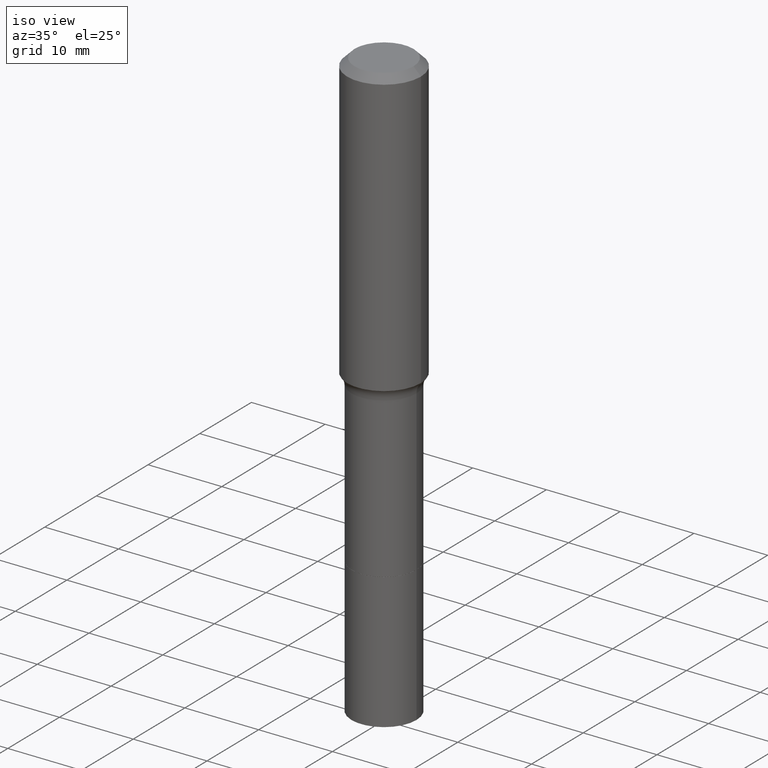
[diagram: clean part render]
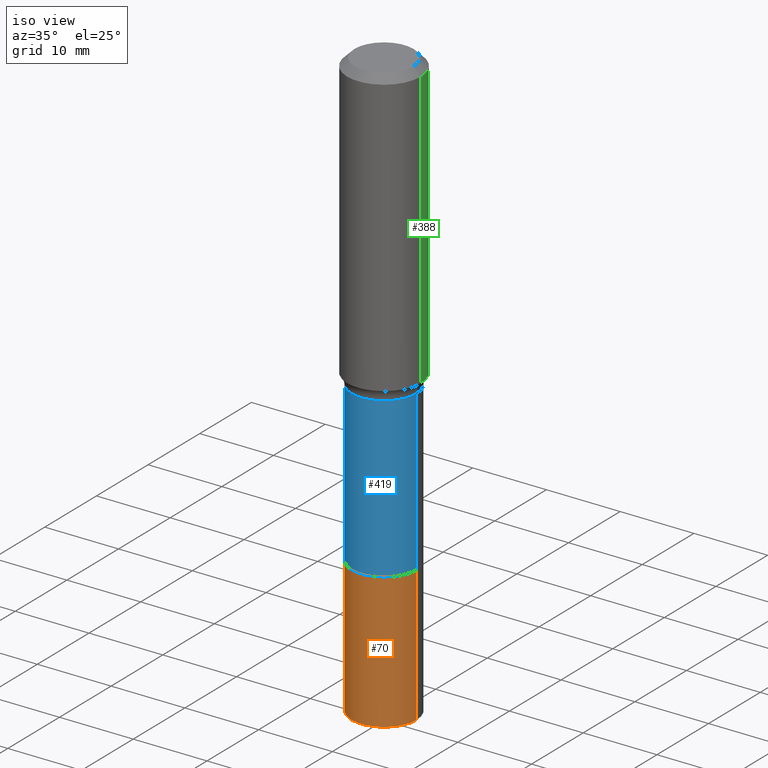
[diagram: same view with three faces highlighted in distinct colors, each labeled with its STEP entity id]
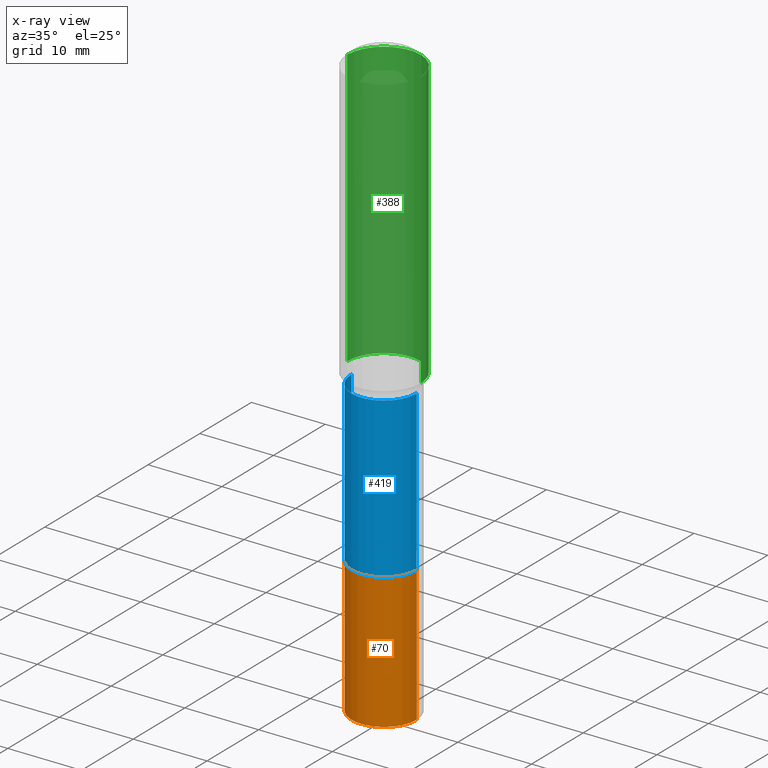
[diagram: x-ray of the same camera — body ghosted, the three highlighted faces saturated]
A machine part, iso view with three faces highlighted in distinct colors.
The next image is the same camera in x-ray (body ghosted, the three faces saturated) — at least one of them is partly hidden behind the body in this view.
Their STEP definitions:

[orange] entity #70 — the highlighted cylindrical surface (partial cylindrical patch) has radius 4.4006 mm, axis along (-0, 0, 1).
#6 = VERTEX_POINT ( 'NONE', #429 ) ;
#10 = VERTEX_POINT ( 'NONE', #106 ) ;
#34 = CIRCLE ( 'NONE', #465, 0.1732500000000001816 ) ;
#55 = EDGE_CURVE ( 'NONE', #6, #10, #427, .T. ) ;
#70 = ADVANCED_FACE ( 'NONE', ( #145 ), #315, .T. ) ;
#89 = ORIENTED_EDGE ( 'NONE', *, *, #313, .T. ) ;
#96 = DIRECTION ( 'NONE',  ( -2.445468806185136597E-29, 3.491481338843145583E-15, 1.000000000000000000 ) ) ;
#100 = CARTESIAN_POINT ( 'NONE',  ( -0.1732500000000001816, -8.501838090454777193E-15, -3.149600000000000399 ) ) ;
#102 = CARTESIAN_POINT ( 'NONE',  ( -0.1732499999999999873, -8.501838090454778770E-15, -2.425600000000000200 ) ) ;
#106 = CARTESIAN_POINT ( 'NONE',  ( 0.1732499999999999873, -9.678735419407081106E-15, -2.425600000000000200 ) ) ;
#109 = CARTESIAN_POINT ( 'NONE',  ( 7.702248551960706711E-29, -1.099676962482037231E-14, -3.149600000000000399 ) ) ;
#115 = ORIENTED_EDGE ( 'NONE', *, *, #55, .T. ) ;
#127 = LINE ( 'NONE', #454, #235 ) ;
#145 = FACE_OUTER_BOUND ( 'NONE', #324, .T. ) ;
#161 = ORIENTED_EDGE ( 'NONE', *, *, #330, .F. ) ;
#181 = CARTESIAN_POINT ( 'NONE',  ( 5.931729136282667609E-29, -8.468937135497934168E-15, -2.425600000000000200 ) ) ;
#192 = DIRECTION ( 'NONE',  ( -2.445468806185136877E-29, 3.491481338843145188E-15, 1.000000000000000000 ) ) ;
#225 = DIRECTION ( 'NONE',  ( -2.445468806185136877E-29, 3.491481338843145188E-15, 1.000000000000000000 ) ) ;
#228 = DIRECTION ( 'NONE',  ( -2.445468806185136597E-29, 3.491481338843145583E-15, 1.000000000000000000 ) ) ;
#233 = AXIS2_PLACEMENT_3D ( 'NONE', #181, #96, #387 ) ;
#235 = VECTOR ( 'NONE', #225, 39.37007874015748143 ) ;
#251 = VERTEX_POINT ( 'NONE', #102 ) ;
#267 = EDGE_CURVE ( 'NONE', #251, #10, #275, .T. ) ;
#271 = AXIS2_PLACEMENT_3D ( 'NONE', #511, #228, #467 ) ;
#275 = CIRCLE ( 'NONE', #271, 0.1732499999999999873 ) ;
#280 = DIRECTION ( 'NONE',  ( -2.445468806185136597E-29, 3.491481338843145583E-15, 1.000000000000000000 ) ) ;
#313 = EDGE_CURVE ( 'NONE', #435, #6, #34, .T. ) ;
#315 = CYLINDRICAL_SURFACE ( 'NONE', #233, 0.1732500000000000984 ) ;
#324 = EDGE_LOOP ( 'NONE', ( #161, #89, #115, #398 ) ) ;
#330 = EDGE_CURVE ( 'NONE', #435, #251, #127, .T. ) ;
#352 = CARTESIAN_POINT ( 'NONE',  ( 0.1732500000000000984, -9.678735419407081106E-15, -2.425600000000000200 ) ) ;
#357 = VECTOR ( 'NONE', #192, 39.37007874015748143 ) ;
#387 = DIRECTION ( 'NONE',  ( 1.000000000000000000, -6.982962677686265133E-15, 0.000000000000000000 ) ) ;
#398 = ORIENTED_EDGE ( 'NONE', *, *, #267, .F. ) ;
#427 = LINE ( 'NONE', #352, #357 ) ;
#429 = CARTESIAN_POINT ( 'NONE',  ( 0.1732500000000001816, -1.220656790872951925E-14, -3.149600000000000399 ) ) ;
#435 = VERTEX_POINT ( 'NONE', #100 ) ;
#454 = CARTESIAN_POINT ( 'NONE',  ( -0.1732500000000000984, -7.237921845793559699E-15, -2.425600000000000200 ) ) ;
#465 = AXIS2_PLACEMENT_3D ( 'NONE', #109, #280, #491 ) ;
#467 = DIRECTION ( 'NONE',  ( 1.000000000000000000, -6.982962677686269866E-15, 0.000000000000000000 ) ) ;
#491 = DIRECTION ( 'NONE',  ( 1.000000000000000000, -6.982962677686267499E-15, 0.000000000000000000 ) ) ;
#511 = CARTESIAN_POINT ( 'NONE',  ( 5.931729136282667609E-29, -8.468937135497934168E-15, -2.425600000000000200 ) ) ;

[blue] entity #419 — the highlighted cylindrical surface (partial cylindrical patch) has radius 4.4005 mm, axis along (-0, 0, 1).
#1 = VERTEX_POINT ( 'NONE', #286 ) ;
#17 = FACE_OUTER_BOUND ( 'NONE', #516, .T. ) ;
#37 = VERTEX_POINT ( 'NONE', #187 ) ;
#39 = CARTESIAN_POINT ( 'NONE',  ( 3.850635182219116347E-29, -5.497686516142417553E-15, -1.574600000000000222 ) ) ;
#61 = DIRECTION ( 'NONE',  ( -2.445468806185136877E-29, 3.491481338843145188E-15, 1.000000000000000000 ) ) ;
#77 = EDGE_CURVE ( 'NONE', #1, #489, #447, .T. ) ;
#78 = ORIENTED_EDGE ( 'NONE', *, *, #245, .F. ) ;
#82 = VERTEX_POINT ( 'NONE', #306 ) ;
#84 = VECTOR ( 'NONE', #269, 39.37007874015748143 ) ;
#108 = CARTESIAN_POINT ( 'NONE',  ( -0.1732499999999999318, 1.231015289704373088E-15, -8.522055043866620619E-30 ) ) ;
#134 = LINE ( 'NONE', #509, #160 ) ;
#135 = CARTESIAN_POINT ( 'NONE',  ( 5.930506401879575929E-29, -8.467191394828513453E-15, -2.425100000000000477 ) ) ;
#156 = CARTESIAN_POINT ( 'NONE',  ( 0.1732499999999999873, -9.676989678737658813E-15, -2.425100000000000477 ) ) ;
#160 = VECTOR ( 'NONE', #61, 39.37007874015748143 ) ;
#187 = CARTESIAN_POINT ( 'NONE',  ( 0.1732499999999998763, -6.707484800051562914E-15, -1.574600000000000222 ) ) ;
#220 = AXIS2_PLACEMENT_3D ( 'NONE', #135, #466, #468 ) ;
#239 = DIRECTION ( 'NONE',  ( 1.000000000000000000, -6.982962677686269866E-15, 0.000000000000000000 ) ) ;
#245 = EDGE_CURVE ( 'NONE', #82, #37, #334, .T. ) ;
#250 = CYLINDRICAL_SURFACE ( 'NONE', #290, 0.1732499999999999318 ) ;
#269 = DIRECTION ( 'NONE',  ( -2.445468806185136877E-29, 3.491481338843145188E-15, 1.000000000000000000 ) ) ;
#272 = ORIENTED_EDGE ( 'NONE', *, *, #77, .T. ) ;
#286 = CARTESIAN_POINT ( 'NONE',  ( -0.1732499999999999873, -5.751423665781092218E-15, -2.425100000000000477 ) ) ;
#290 = AXIS2_PLACEMENT_3D ( 'NONE', #340, #412, #338 ) ;
#306 = CARTESIAN_POINT ( 'NONE',  ( -0.1732499999999998763, -5.751423665781093007E-15, -1.574600000000000222 ) ) ;
#314 = LINE ( 'NONE', #108, #84 ) ;
#334 = CIRCLE ( 'NONE', #510, 0.1732499999999998763 ) ;
#338 = DIRECTION ( 'NONE',  ( 1.000000000000000000, -6.982962677686267499E-15, 4.876176775795935793E-29 ) ) ;
#339 = ORIENTED_EDGE ( 'NONE', *, *, #457, .F. ) ;
#340 = CARTESIAN_POINT ( 'NONE',  ( 0.000000000000000000, 0.000000000000000000, 0.000000000000000000 ) ) ;
#360 = EDGE_CURVE ( 'NONE', #489, #37, #134, .T. ) ;
#373 = ORIENTED_EDGE ( 'NONE', *, *, #360, .T. ) ;
#401 = DIRECTION ( 'NONE',  ( -2.445468806185136597E-29, 3.491481338843145583E-15, 1.000000000000000000 ) ) ;
#412 = DIRECTION ( 'NONE',  ( -2.445468806185136597E-29, 3.491481338843145583E-15, 1.000000000000000000 ) ) ;
#419 = ADVANCED_FACE ( 'NONE', ( #17 ), #250, .T. ) ;
#447 = CIRCLE ( 'NONE', #220, 0.1732499999999999873 ) ;
#457 = EDGE_CURVE ( 'NONE', #1, #82, #314, .T. ) ;
#466 = DIRECTION ( 'NONE',  ( -2.445468806185136597E-29, 3.491481338843145583E-15, 1.000000000000000000 ) ) ;
#468 = DIRECTION ( 'NONE',  ( 1.000000000000000000, -6.982962677686265133E-15, 0.000000000000000000 ) ) ;
#489 = VERTEX_POINT ( 'NONE', #156 ) ;
#509 = CARTESIAN_POINT ( 'NONE',  ( 0.1732499999999999318, -1.209798283909145361E-15, 8.447976264066455874E-30 ) ) ;
#510 = AXIS2_PLACEMENT_3D ( 'NONE', #39, #401, #239 ) ;
#516 = EDGE_LOOP ( 'NONE', ( #339, #272, #373, #78 ) ) ;

[green] entity #388 — the highlighted cylindrical surface (partial cylindrical patch) has radius 5 mm, axis along (-0, 0, 1).
#7 = ORIENTED_EDGE ( 'NONE', *, *, #400, .F. ) ;
#12 = DIRECTION ( 'NONE',  ( -2.445468806185136597E-29, 3.491481338843145583E-15, 1.000000000000000000 ) ) ;
#15 = CARTESIAN_POINT ( 'NONE',  ( 9.627810689950950651E-31, -1.374596203102556054E-16, -0.03937000000000027977 ) ) ;
#18 = LINE ( 'NONE', #345, #395 ) ;
#23 = CARTESIAN_POINT ( 'NONE',  ( 0.000000000000000000, 0.000000000000000000, 0.000000000000000000 ) ) ;
#50 = CARTESIAN_POINT ( 'NONE',  ( -0.1968500000000001915, -3.900594588805818915E-15, -1.517779260394222174 ) ) ;
#64 = LINE ( 'NONE', #298, #190 ) ;
#86 = CARTESIAN_POINT ( 'NONE',  ( 3.711681835968817620E-29, -5.299297964149577492E-15, -1.517779260394222174 ) ) ;
#98 = EDGE_CURVE ( 'NONE', #407, #359, #18, .T. ) ;
#104 = CIRCLE ( 'NONE', #335, 0.1968500000000001915 ) ;
#105 = CYLINDRICAL_SURFACE ( 'NONE', #146, 0.1968500000000001082 ) ;
#146 = AXIS2_PLACEMENT_3D ( 'NONE', #23, #12, #348 ) ;
#178 = CARTESIAN_POINT ( 'NONE',  ( 0.1968500000000000250, -1.512055823412797189E-15, -0.03937000000000027977 ) ) ;
#186 = FACE_OUTER_BOUND ( 'NONE', #446, .T. ) ;
#190 = VECTOR ( 'NONE', #353, 39.37007874015748143 ) ;
#208 = AXIS2_PLACEMENT_3D ( 'NONE', #15, #458, #377 ) ;
#211 = DIRECTION ( 'NONE',  ( 1.000000000000000000, -6.982962677686266711E-15, 0.000000000000000000 ) ) ;
#244 = ORIENTED_EDGE ( 'NONE', *, *, #316, .T. ) ;
#248 = CIRCLE ( 'NONE', #208, 0.1968500000000000250 ) ;
#249 = VERTEX_POINT ( 'NONE', #504 ) ;
#258 = EDGE_CURVE ( 'NONE', #249, #320, #64, .T. ) ;
#295 = CARTESIAN_POINT ( 'NONE',  ( -0.1968500000000000250, -1.319675416886158354E-15, -0.03937000000000027977 ) ) ;
#298 = CARTESIAN_POINT ( 'NONE',  ( 0.1968500000000001082, -1.374596203102542397E-15, 9.598753983154305062E-30 ) ) ;
#316 = EDGE_CURVE ( 'NONE', #249, #407, #104, .T. ) ;
#320 = VERTEX_POINT ( 'NONE', #178 ) ;
#335 = AXIS2_PLACEMENT_3D ( 'NONE', #86, #410, #211 ) ;
#337 = ORIENTED_EDGE ( 'NONE', *, *, #98, .T. ) ;
#345 = CARTESIAN_POINT ( 'NONE',  ( -0.1968500000000001082, 1.398703375343757985E-15, -9.682923725166787881E-30 ) ) ;
#348 = DIRECTION ( 'NONE',  ( 1.000000000000000000, -6.982962677686266711E-15, 4.876176775795935793E-29 ) ) ;
#349 = DIRECTION ( 'NONE',  ( -2.445468806185136877E-29, 3.491481338843145188E-15, 1.000000000000000000 ) ) ;
#353 = DIRECTION ( 'NONE',  ( -2.445468806185136877E-29, 3.491481338843145188E-15, 1.000000000000000000 ) ) ;
#359 = VERTEX_POINT ( 'NONE', #295 ) ;
#377 = DIRECTION ( 'NONE',  ( 1.000000000000000000, -6.982962677686265922E-15, 0.000000000000000000 ) ) ;
#388 = ADVANCED_FACE ( 'NONE', ( #186 ), #105, .T. ) ;
#395 = VECTOR ( 'NONE', #349, 39.37007874015748143 ) ;
#400 = EDGE_CURVE ( 'NONE', #320, #359, #248, .T. ) ;
#405 = ORIENTED_EDGE ( 'NONE', *, *, #258, .F. ) ;
#407 = VERTEX_POINT ( 'NONE', #50 ) ;
#410 = DIRECTION ( 'NONE',  ( -2.445468806185136597E-29, 3.491481338843145583E-15, 1.000000000000000000 ) ) ;
#446 = EDGE_LOOP ( 'NONE', ( #244, #337, #7, #405 ) ) ;
#458 = DIRECTION ( 'NONE',  ( -2.445468806185136597E-29, 3.491481338843145583E-15, 1.000000000000000000 ) ) ;
#504 = CARTESIAN_POINT ( 'NONE',  ( 0.1968500000000001915, -6.673894167252119100E-15, -1.517779260394222174 ) ) ;